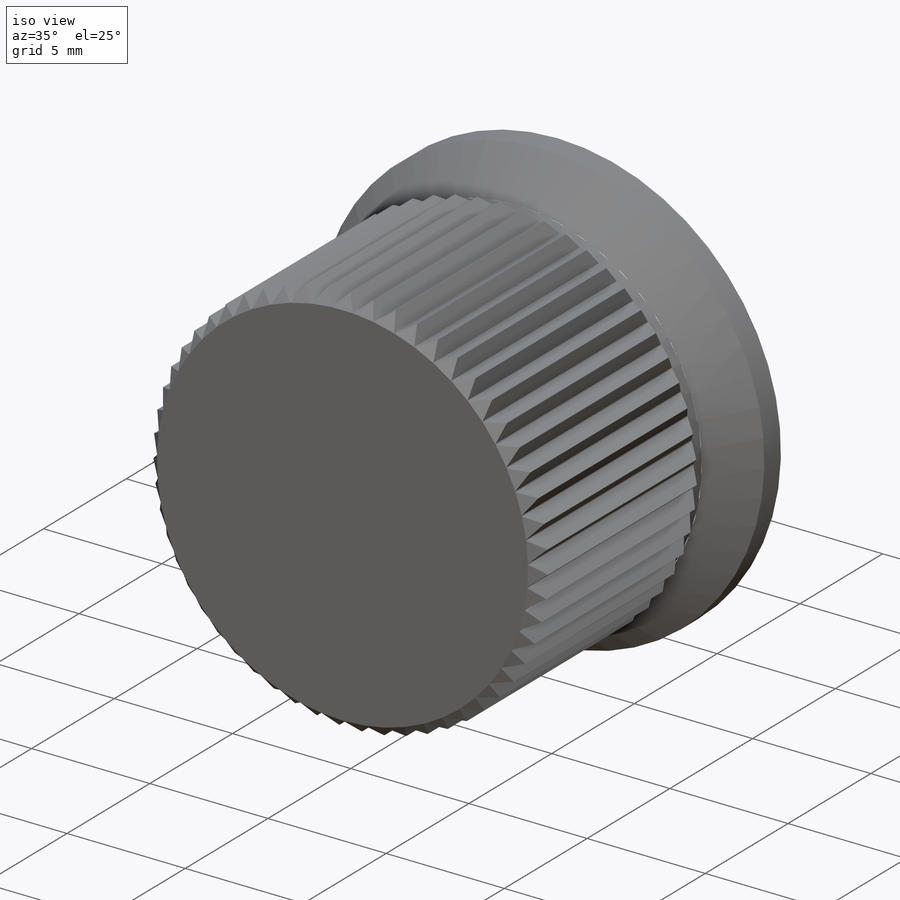
[diagram: iso view]
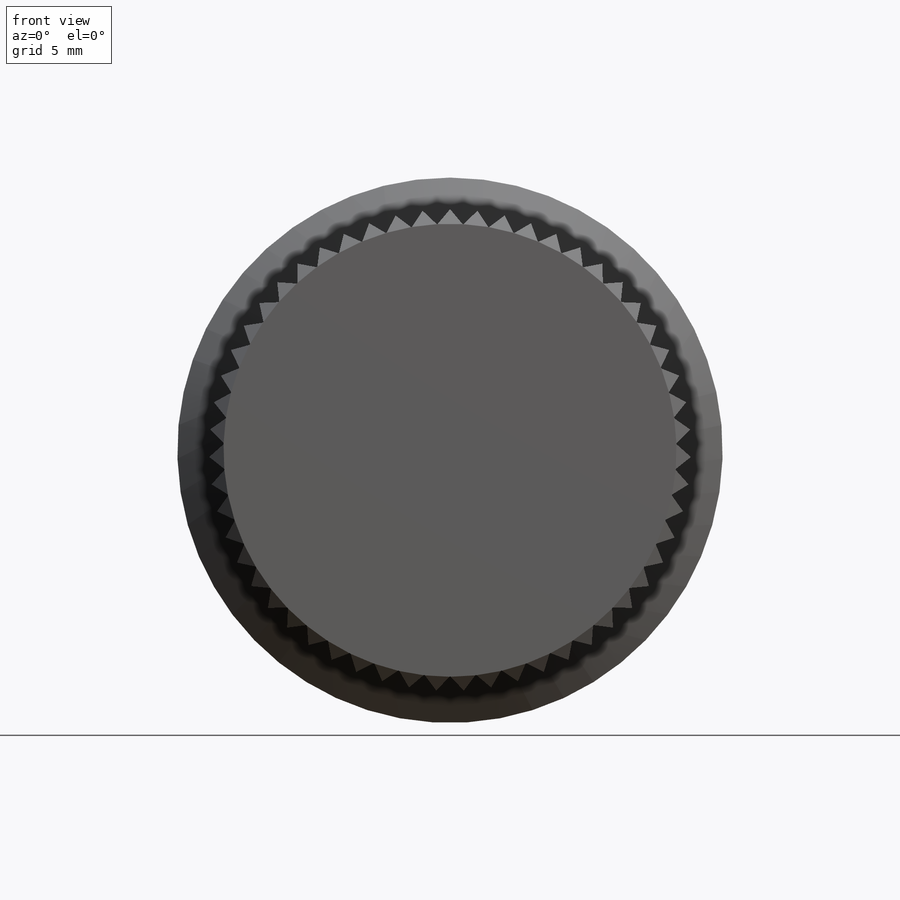
[diagram: front view]
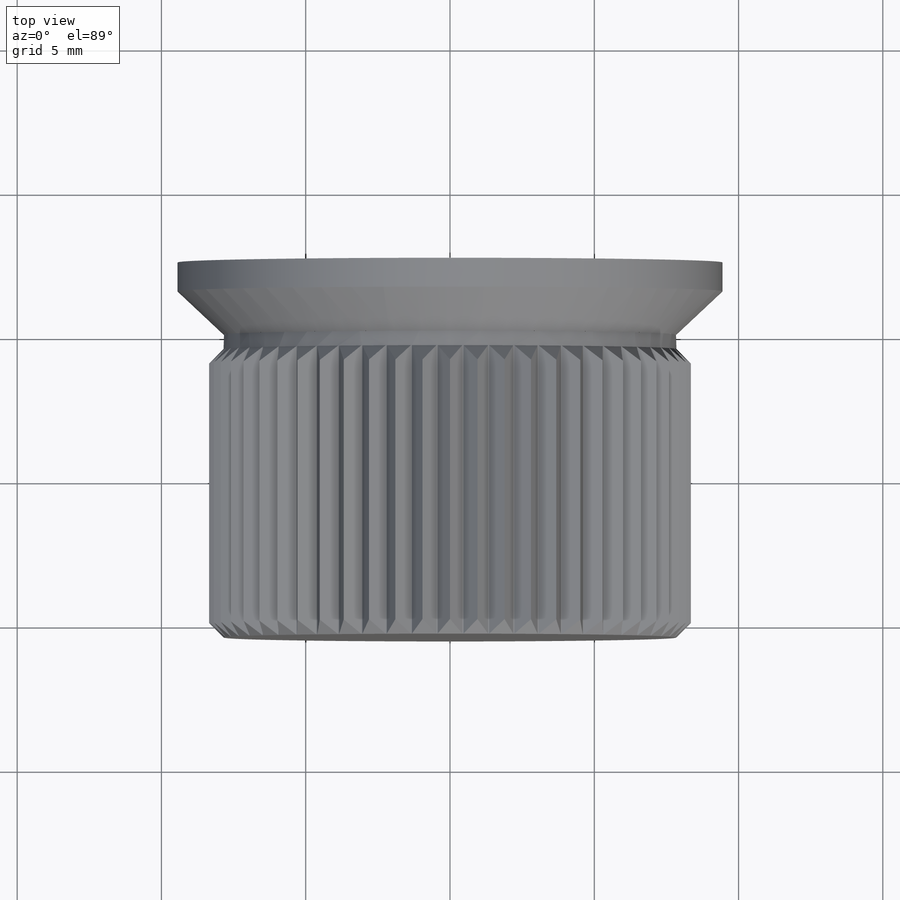
[diagram: top view]
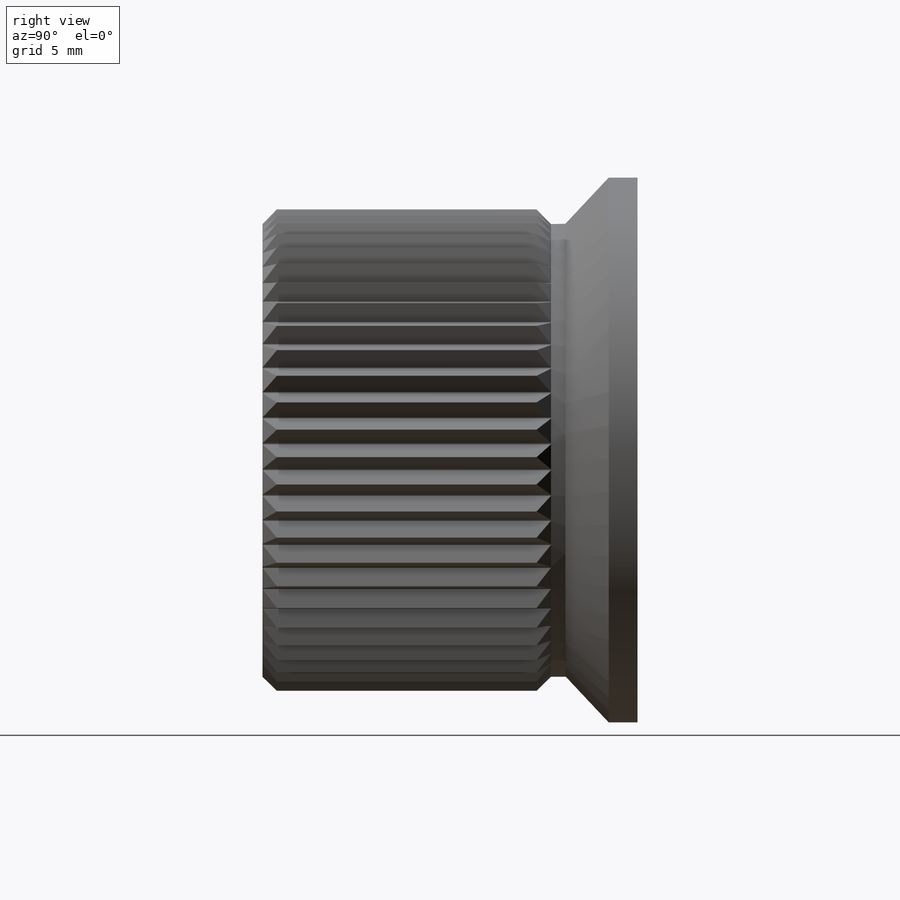
[diagram: right view]
SOLIDWORKS PART (.sldprt)
format: sldprt  version: not decoded by parser v0  size: 453,120 bytes
history: native  units: mm
features: sketch x4, material x1, revolve x1, extrude x1, pattern_circular x1, cut_revolve x1, cut_extrude x1 (+11 scaffold rows collapsed)
feature tree (21):
  scaffold x11  (default folders/planes/origin — collapsed)
  material  "Plain Carbon Steel"
  sketch  "Sketch1"  dims[D1=13.0mm D2=9.45mm D3=7.0mm D4=1.0mm D5=2.5mm D6=10.5mm D7=7.85mm]
  revolve  "Revolve1"  Angle=360deg
  sketch  "Sketch2"  dims[c1.D1=0.5mm c1.D2=~0.520526mm c2.D2=80.0deg]
  extrude  "Boss-Extrude1"  Depth=10mm
  pattern_circular  "CirPattern1"  Count=55 Angle=360deg
  sketch  "Sketch3"  dims[D1=0.5mm]
  cut_revolve  "Cut-Revolve1"  Angle=360deg
  sketch  "Sketch4"  dims[D1=6.0mm]
  cut_extrude  "Cut-Extrude1"  Depth=8mm
decode coverage: 9 of 9 modeling features carry decoded parameters
note: ~ marks probable driven/reference dimensions
note: suppression state not decoded; provenance and decode notes live in map.json
